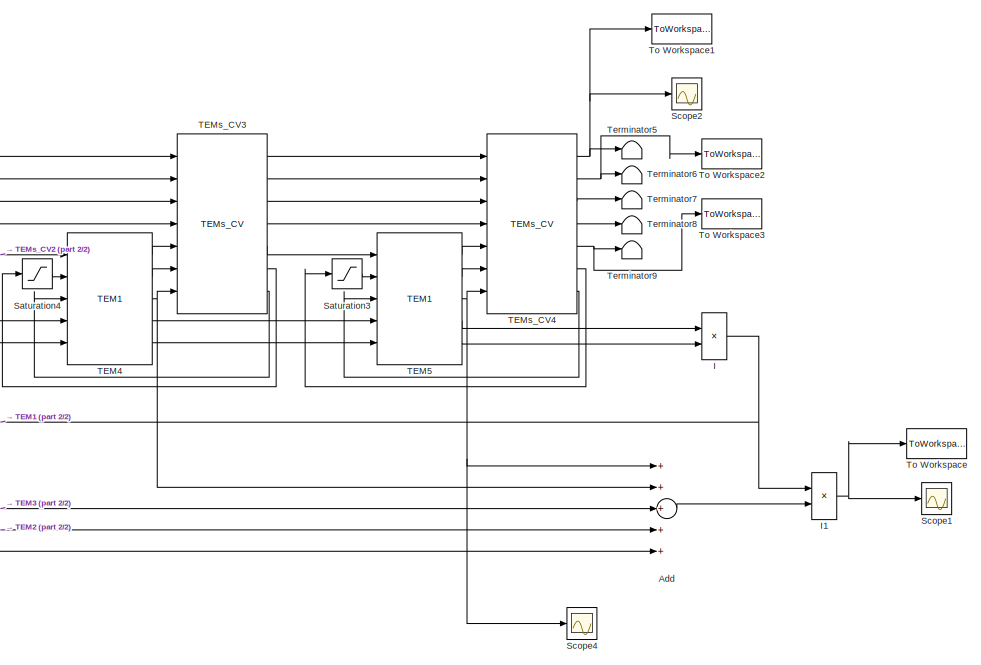
[diagram: root canvas - part 1/2, right side, full height]
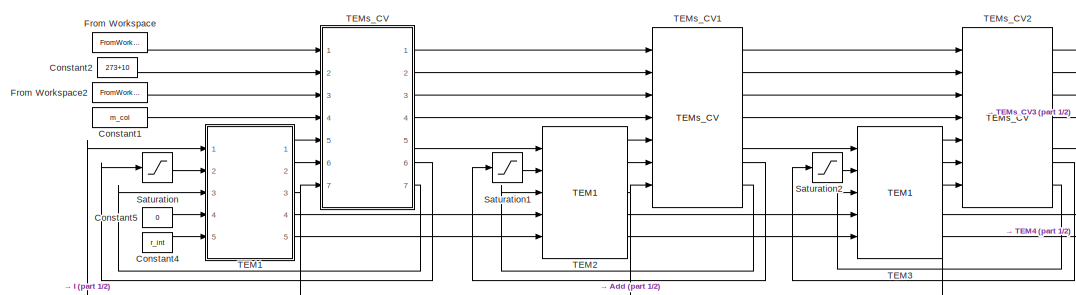
[diagram: root canvas - part 2/2, middle left region]
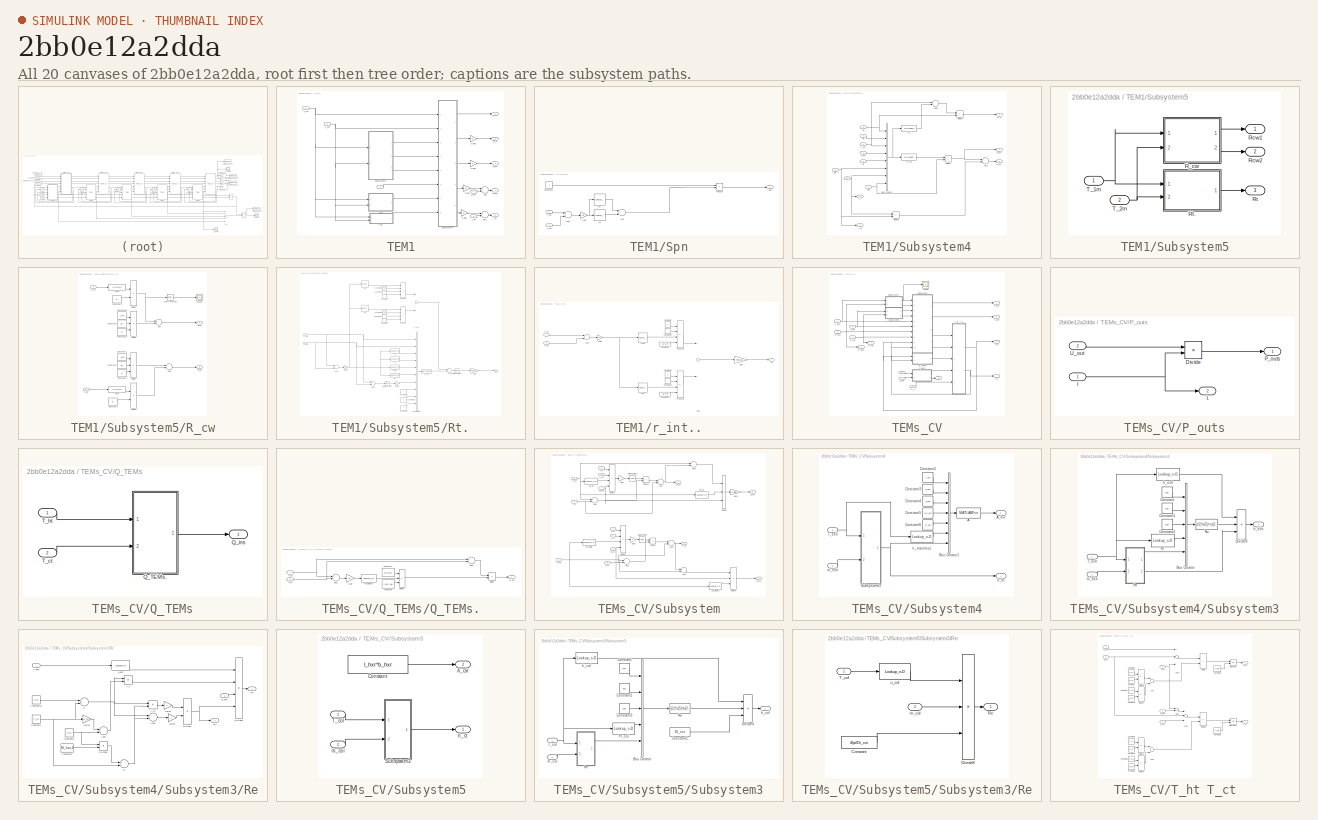
[diagram: thumbnail index - all 20 canvases of the model, root first then tree order]
MODEL slx_2bb0e12a2dda
KIND model
CONFIG AbsTol = auto
CONFIG FixedStep = 1
CONFIG MaxStep = auto
CONFIG MinStep = auto
CONFIG RelTol = 5e-3
CONFIG SampleTimeConstraint = Unconstrained
CONFIG Solver = ode3
CONFIG SolverMode = Auto
CONFIG SolverName = ode3
CONFIG StartTime = 0.0
CONFIG StopTime = 1372
BLOCK [Sum] Add
  InputSameDT = off
  Inputs = +++++
  OutDataTypeStr = Inherit: Inherit via internal rule
  Ports = [5, 1]
  SaturateOnIntegerOverflow = off
BLOCK [Constant] Constant1
  Value = m_col
BLOCK [Constant] Constant2
  Value = 273+10
BLOCK [Constant] Constant4
  Value = r_int
BLOCK [Constant] Constant5
  Value = 0
BLOCK [FromWorkspace] From Workspace
  SampleTime = 0
  VariableName = T_exh
  ZeroCross = on
BLOCK [FromWorkspace] From Workspace2
  SampleTime = 0
  VariableName = m_exh
  ZeroCross = on
BLOCK [Product] I
  InputSameDT = off
  Inputs = */
  OutDataTypeStr = Inherit: Inherit via internal rule
  Ports = [2, 1]
  RndMeth = Floor
  SaturateOnIntegerOverflow = off
BLOCK [Product] I1
  InputSameDT = off
  Inputs = **
  OutDataTypeStr = Inherit: Inherit via internal rule
  Ports = [2, 1]
  RndMeth = Floor
  SaturateOnIntegerOverflow = off
BLOCK [Saturate] Saturation
  InputPortMap = u0
  LowerLimit = 0
  Ports = [1, 1]
  UpperLimit = 523
BLOCK [Saturate] Saturation1
  InputPortMap = u0
  LowerLimit = 0
  Ports = [1, 1]
  UpperLimit = 523
BLOCK [Saturate] Saturation2
  InputPortMap = u0
  LowerLimit = 0
  Ports = [1, 1]
  UpperLimit = 523
BLOCK [Saturate] Saturation3
  InputPortMap = u0
  LowerLimit = 0
  Ports = [1, 1]
  UpperLimit = 523
BLOCK [Saturate] Saturation4
  InputPortMap = u0
  LowerLimit = 0
  Ports = [1, 1]
  UpperLimit = 523
BLOCK [Scope] Scope1
  Floating = off
  NumInputPorts = 1
  Ports = [1]
  SaveName = ScopeData1
  YMax = 224.25
  YMin = 221.25
BLOCK [Scope] Scope2
  Floating = off
  NumInputPorts = 1
  Ports = [1]
  YMax = 4.129
  YMin = 4.115
BLOCK [Scope] Scope4
  Floating = off
  NumInputPorts = 1
  Ports = [1]
  SaveName = ScopeData4
  YMax = 363
  YMin = 350
BLOCK [SubSystem] TEM1
  AncestorBlock = LU_TEG/TEM1
  Ports = [5, 5]
  RequestExecContextInheritance = off
BLOCK [Sum] TEM1/Add
  InputSameDT = off
  OutDataTypeStr = Inherit: Inherit via internal rule
  Ports = [2, 1]
  SaturateOnIntegerOverflow = off
BLOCK [Sum] TEM1/Add1
  InputSameDT = off
  OutDataTypeStr = Inherit: Inherit via internal rule
  Ports = [2, 1]
  SaturateOnIntegerOverflow = off
BLOCK [Gain] TEM1/Gain
  Gain = M
  OutDataTypeStr = Inherit: Inherit via internal rule
  ParamDataTypeStr = Inherit: Inherit via internal rule
  SaturateOnIntegerOverflow = off
BLOCK [Gain] TEM1/Gain1
  Gain = M
  OutDataTypeStr = Inherit: Inherit via internal rule
  ParamDataTypeStr = Inherit: Inherit via internal rule
  SaturateOnIntegerOverflow = off
BLOCK [Gain] TEM1/Gain2
  Gain = M
  OutDataTypeStr = Inherit: Inherit via internal rule
  ParamDataTypeStr = Inherit: Inherit via internal rule
  SaturateOnIntegerOverflow = off
BLOCK [Gain] TEM1/Gain3
  Gain = M
  OutDataTypeStr = Inherit: Inherit via internal rule
  ParamDataTypeStr = Inherit: Inherit via internal rule
  SaturateOnIntegerOverflow = off
BLOCK [Inport] TEM1/I
  IconDisplay = Port number
  OutDataTypeStr = double
  PortDimensions = 1
  SampleTime = [0,1]
  SamplingMode = Sample based
  SignalType = real
BLOCK [Outport] TEM1/I.
  IconDisplay = Port number
  OutDataTypeStr = double
  PortDimensions = 1
  SampleTime = [0,1]
  SamplingMode = Sample based
  SignalType = real
BLOCK [Outport] TEM1/Q_h
  IconDisplay = Port number
  OutDataTypeStr = double
  Port = 2
  PortDimensions = 1
  SampleTime = [0,1]
  SamplingMode = Sample based
  SignalType = real
BLOCK [SubSystem] TEM1/Spn
  Ports = [2, 1]
  RequestExecContextInheritance = off
BLOCK [Sum] TEM1/Spn/Add
  InputSameDT = off
  Inputs = +-
  OutDataTypeStr = Inherit: Inherit via internal rule
  Ports = [2, 1]
  SaturateOnIntegerOverflow = off
BLOCK [Sum] TEM1/Spn/Add2
  InputSameDT = off
  OutDataTypeStr = Inherit: Inherit via internal rule
  Ports = [2, 1]
  SaturateOnIntegerOverflow = off
BLOCK [Constant] TEM1/Spn/Constant2
  Value = n
BLOCK [Gain] TEM1/Spn/Gain
  Gain = 0.5
  OutDataTypeStr = Inherit: Inherit via internal rule
  ParamDataTypeStr = Inherit: Inherit via internal rule
  SaturateOnIntegerOverflow = off
BLOCK [Product] TEM1/Spn/Product
  InputSameDT = off
  OutDataTypeStr = Inherit: Inherit via internal rule
  Ports = [2, 1]
  RndMeth = Floor
  SaturateOnIntegerOverflow = off
BLOCK [Outport] TEM1/Spn/Spn
  IconDisplay = Port number
BLOCK [Inport] TEM1/Spn/T_1m
  IconDisplay = Port number
BLOCK [Inport] TEM1/Spn/T_2m
  IconDisplay = Port number
  Port = 2
BLOCK [Lookup_n-D] TEM1/Spn/sn
  BreakpointsForDimension1 = N(:,1)
  ExtrapMethod = Cubic spline
  InternalRulePriority = Speed
  InterpMethod = Cubic spline
  NumberOfTableDimensions = 1
  Ports = [1, 1]
  RndMeth = Simplest
  Table = N(:,2)
BLOCK [Lookup_n-D] TEM1/Spn/sp
  BreakpointsForDimension1 = P(:,1)
  ExtrapMethod = Cubic spline
  InternalRulePriority = Speed
  InterpMethod = Cubic spline
  NumberOfTableDimensions = 1
  Ports = [1, 1]
  RndMeth = Simplest
  Table = P(:,2)
BLOCK [SubSystem] TEM1/Subsystem4
  Ports = [8, 5]
  RequestExecContextInheritance = off
BLOCK [Sum] TEM1/Subsystem4/Add1
  InputSameDT = off
  Inputs = +-
  OutDataTypeStr = Inherit: Inherit via internal rule
  Ports = [2, 1]
  SaturateOnIntegerOverflow = off
BLOCK [Sum] TEM1/Subsystem4/Add2
  InputSameDT = off
  Inputs = +-
  OutDataTypeStr = Inherit: Inherit via internal rule
  Ports = [2, 1]
  SaturateOnIntegerOverflow = off
BLOCK [BusCreator] TEM1/Subsystem4/Bus Creator
  DisplayOption = bar
  Inputs = 8
  Ports = [8, 1]
BLOCK [Product] TEM1/Subsystem4/Divide1
  InputSameDT = off
  Inputs = **
  OutDataTypeStr = Inherit: Inherit via internal rule
  Ports = [2, 1]
  RndMeth = Floor
  SaturateOnIntegerOverflow = off
BLOCK [Product] TEM1/Subsystem4/Divide2
  InputSameDT = off
  Inputs = **
  OutDataTypeStr = Inherit: Inherit via internal rule
  Ports = [2, 1]
  RndMeth = Floor
  SaturateOnIntegerOverflow = off
BLOCK [Product] TEM1/Subsystem4/Divide3
  InputSameDT = off
  Inputs = */
  OutDataTypeStr = Inherit: Inherit via internal rule
  Ports = [2, 1]
  RndMeth = Floor
  SaturateOnIntegerOverflow = off
BLOCK [Inport] TEM1/Subsystem4/I
  IconDisplay = Port number
  Port = 6
BLOCK [Outport] TEM1/Subsystem4/I.
  IconDisplay = Port number
  OutDataTypeStr = double
  PortDimensions = 1
  SampleTime = [0,1]
  SamplingMode = Sample based
  SignalType = real
BLOCK [Outport] TEM1/Subsystem4/Q_h
  IconDisplay = Port number
  OutDataTypeStr = double
  Port = 2
  PortDimensions = 1
  SampleTime = [0,1]
  SamplingMode = Sample based
  SignalType = real
BLOCK [Inport] TEM1/Subsystem4/Rc
  IconDisplay = Port number
  Port = 4
BLOCK [Inport] TEM1/Subsystem4/Rh
  IconDisplay = Port number
  Port = 3
BLOCK [Inport] TEM1/Subsystem4/Rt
  IconDisplay = Port number
  Port = 5
BLOCK [Inport] TEM1/Subsystem4/Spn
  IconDisplay = Port number
  Port = 7
BLOCK [MATLABFcn] TEM1/Subsystem4/T_1
  MATLABFcn = T1(u(1),u(2),u(3),u(4),u(5),u(6),u(7),u(8))
  OutputSignalType = real
  Ports = [1, 1]
BLOCK [MATLABFcn] TEM1/Subsystem4/T_1_T2
  MATLABFcn = T1_T2(u(1),u(2),u(3),u(4),u(5),u(6),u(7),u(8))
  OutputSignalType = real
  Ports = [1, 1]
BLOCK [Inport] TEM1/Subsystem4/T_1m
  IconDisplay = Port number
BLOCK [Inport] TEM1/Subsystem4/T_2m
  IconDisplay = Port number
  Port = 2
BLOCK [Outport] TEM1/Subsystem4/U_ocv.
  IconDisplay = Port number
  Port = 4
BLOCK [Outport] TEM1/Subsystem4/U_out.
  IconDisplay = Port number
  Port = 3
BLOCK [Outport] TEM1/Subsystem4/r_int
  IconDisplay = Port number
  OutDataTypeStr = double
  Port = 5
  PortDimensions = 1
  SampleTime = [0,1]
  SamplingMode = Sample based
  SignalType = real
BLOCK [Inport] TEM1/Subsystem4/r_int..
  IconDisplay = Port number
  Port = 8
BLOCK [SubSystem] TEM1/Subsystem5
  Ports = [2, 3]
  RequestExecContextInheritance = off
BLOCK [SubSystem] TEM1/Subsystem5/R_cw
  Ports = [2, 2]
  RequestExecContextInheritance = off
BLOCK [Sum] TEM1/Subsystem5/R_cw/Add
  InputSameDT = off
  OutDataTypeStr = Inherit: Inherit via internal rule
  Ports = [2, 1]
  SaturateOnIntegerOverflow = off
BLOCK [Sum] TEM1/Subsystem5/R_cw/Add2
  InputSameDT = off
  OutDataTypeStr = Inherit: Inherit via internal rule
  Ports = [2, 1]
  SaturateOnIntegerOverflow = off
BLOCK [Constant] TEM1/Subsystem5/R_cw/Constant1
  Value = l_cw
BLOCK [Constant] TEM1/Subsystem5/R_cw/Constant2
  Value = a
BLOCK [Constant] TEM1/Subsystem5/R_cw/Constant20
  Value = l_cw
BLOCK [Constant] TEM1/Subsystem5/R_cw/Constant26
  Value = a
BLOCK [Constant] TEM1/Subsystem5/R_cw/Constant3
  Value = a
BLOCK [Constant] TEM1/Subsystem5/R_cw/Constant4
  Value = a
BLOCK [Constant] TEM1/Subsystem5/R_cw/Constant5
  Value = 35
BLOCK [Constant] TEM1/Subsystem5/R_cw/Constant6
  Value = 35
BLOCK [Product] TEM1/Subsystem5/R_cw/Divide
  InputSameDT = off
  Inputs = *//
  OutDataTypeStr = Inherit: Inherit via internal rule
  Ports = [3, 1]
  RndMeth = Floor
  SaturateOnIntegerOverflow = off
BLOCK [Product] TEM1/Subsystem5/R_cw/Divide1
  InputSameDT = off
  Inputs = *//
  OutDataTypeStr = Inherit: Inherit via internal rule
  Ports = [3, 1]
  RndMeth = Floor
  SaturateOnIntegerOverflow = off
BLOCK [Product] TEM1/Subsystem5/R_cw/Divide2
  InputSameDT = off
  Inputs = //
  OutDataTypeStr = Inherit: Inherit via internal rule
  Ports = [2, 1]
  RndMeth = Floor
  SaturateOnIntegerOverflow = off
BLOCK [Product] TEM1/Subsystem5/R_cw/Divide3
  InputSameDT = off
  Inputs = //
  OutDataTypeStr = Inherit: Inherit via internal rule
  Ports = [2, 1]
  RndMeth = Floor
  SaturateOnIntegerOverflow = off
BLOCK [Fcn] TEM1/Subsystem5/R_cw/Fcn1
  Expr = ct1*u+ct2
BLOCK [Fcn] TEM1/Subsystem5/R_cw/Fcn2
  Expr = ct1*u+ct2
BLOCK [Math] TEM1/Subsystem5/R_cw/Math Function
  Operator = reciprocal
  Ports = [1, 1]
BLOCK [Outport] TEM1/Subsystem5/R_cw/Rcw1
  IconDisplay = Port number
BLOCK [Outport] TEM1/Subsystem5/R_cw/Rcw2
  IconDisplay = Port number
  Port = 2
BLOCK [Scope] TEM1/Subsystem5/R_cw/Scope
  Floating = off
  NumInputPorts = 1
  Ports = [1]
  SaveName = ScopeData2
  YMax = 13
  YMin = 7
BLOCK [Inport] TEM1/Subsystem5/R_cw/T_1m
  IconDisplay = Port number
BLOCK [Inport] TEM1/Subsystem5/R_cw/T_2m
  IconDisplay = Port number
  Port = 2
BLOCK [Outport] TEM1/Subsystem5/Rcw1
  IconDisplay = Port number
BLOCK [Outport] TEM1/Subsystem5/Rcw2
  IconDisplay = Port number
  Port = 2
BLOCK [Outport] TEM1/Subsystem5/Rt
  IconDisplay = Port number
  Port = 3
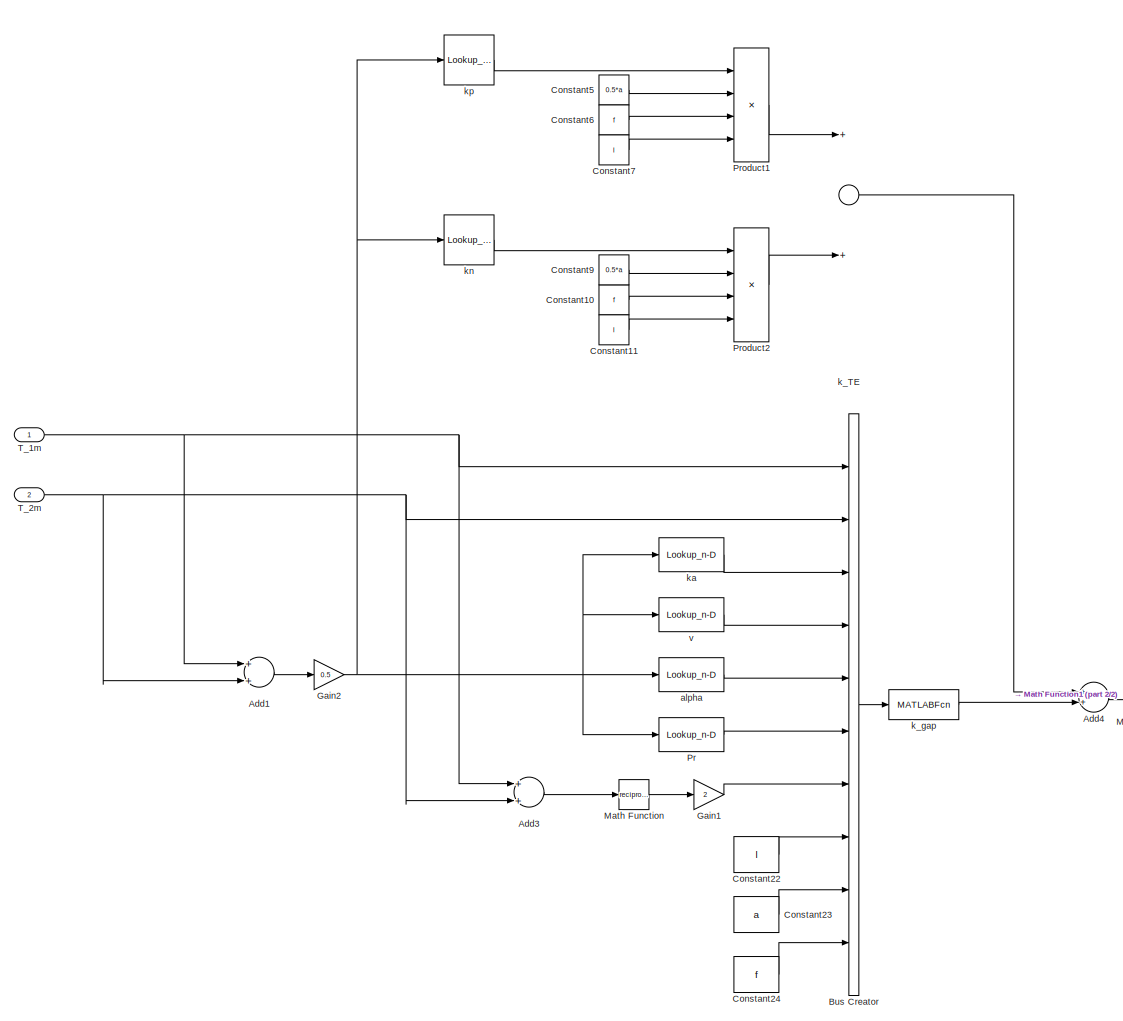
[diagram: TEM1/Subsystem5/Rt. - part 1/2, most of the canvas]
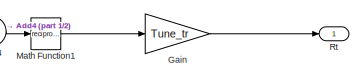
[diagram: TEM1/Subsystem5/Rt. - part 2/2, bottom right region]
BLOCK [SubSystem] TEM1/Subsystem5/Rt.
  Ports = [2, 1]
  RequestExecContextInheritance = off
BLOCK [Sum] TEM1/Subsystem5/Rt./Add1
  InputSameDT = off
  OutDataTypeStr = Inherit: Inherit via internal rule
  Ports = [2, 1]
  SaturateOnIntegerOverflow = off
BLOCK [Sum] TEM1/Subsystem5/Rt./Add3
  InputSameDT = off
  OutDataTypeStr = Inherit: Inherit via internal rule
  Ports = [2, 1]
  SaturateOnIntegerOverflow = off
BLOCK [Sum] TEM1/Subsystem5/Rt./Add4
  InputSameDT = off
  OutDataTypeStr = Inherit: Inherit via internal rule
  Ports = [2, 1]
  SaturateOnIntegerOverflow = off
BLOCK [BusCreator] TEM1/Subsystem5/Rt./Bus Creator
  DisplayOption = bar
  Inputs = 10
  Ports = [10, 1]
BLOCK [Constant] TEM1/Subsystem5/Rt./Constant10
  Value = f
BLOCK [Constant] TEM1/Subsystem5/Rt./Constant11
  Value = l
BLOCK [Constant] TEM1/Subsystem5/Rt./Constant22
  Value = l
BLOCK [Constant] TEM1/Subsystem5/Rt./Constant23
  Value = a
BLOCK [Constant] TEM1/Subsystem5/Rt./Constant24
  Value = f
BLOCK [Constant] TEM1/Subsystem5/Rt./Constant5
  Value = 0.5*a
BLOCK [Constant] TEM1/Subsystem5/Rt./Constant6
  Value = f
BLOCK [Constant] TEM1/Subsystem5/Rt./Constant7
  Value = l
BLOCK [Constant] TEM1/Subsystem5/Rt./Constant9
  Value = 0.5*a
BLOCK [Gain] TEM1/Subsystem5/Rt./Gain
  Gain = Tune_tr
  OutDataTypeStr = Inherit: Inherit via internal rule
  ParamDataTypeStr = Inherit: Inherit via internal rule
  SaturateOnIntegerOverflow = off
BLOCK [Gain] TEM1/Subsystem5/Rt./Gain1
  Gain = 2
  OutDataTypeStr = Inherit: Inherit via internal rule
  ParamDataTypeStr = Inherit: Inherit via internal rule
  SaturateOnIntegerOverflow = off
BLOCK [Gain] TEM1/Subsystem5/Rt./Gain2
  Gain = 0.5
  OutDataTypeStr = Inherit: Inherit via internal rule
  ParamDataTypeStr = Inherit: Inherit via internal rule
  SaturateOnIntegerOverflow = off
BLOCK [Math] TEM1/Subsystem5/Rt./Math Function
  Operator = reciprocal
  Ports = [1, 1]
BLOCK [Math] TEM1/Subsystem5/Rt./Math Function1
  Operator = reciprocal
  Ports = [1, 1]
BLOCK [Lookup_n-D] TEM1/Subsystem5/Rt./Pr
  BreakpointsForDimension1 = [293\n313\n333\n353\n373\n393\n413\n433\n453\n473\n493\n513\n533\n553\n573\n593\n613\n633\n653\n673\n693\n713\n733\n753\n773\n793\n813\n833\n853\n873\n900\n920\n940\n960\n980\n1000\n1020\n1040\n1060\n1080\n1100\n1120\n1140\n1160\n1180\n1200\n1220\n1240\n1260\n1280\n1300\n1320\n1340\n1360\n1380\n1400\n1420\n1440\n1460\n1480]  <repeated x8 — deduplicated; at blocks: Pr, alpha, ka, v, Cp_air, Cp_air., k_exh>
  ExtrapMethod = Cubic spline
  InterpMethod = Cubic spline
  NumberOfTableDimensions = 1
  Ports = [1, 1]
  RndMeth = Simplest
  Table = [0.70868\n0.70388\n0.69972\n0.6964\n0.6924\n0.68912\n0.68696\n0.68536\n0.68376\n0.68216\n0.68056\n0.68\n0.68\n0.68\n0.68\n0.68\n0.68052\n0.68132\n0.68212\n0.68292\n0.68372\n0.68478\n0.68598\n0.68718\n0.68838\n0.68958\n0.69078\n0.69198\n0.69318\n0.69438\n0.696\n0.6972\n0.6984\n0.6996\n0.7008\n0.702\n0.7028\n0.7036\n0.7046\n0.7058\n0.707\n0.7078\n0.7086\n0.7094\n0.7102\n0.711\n0.7118\n0.7126\n0.7134\n0.7142\n0.715\n0.7158\n0.7166\n0.7174\n0.7182\n0.719\n...<+29ch>
BLOCK [Product] TEM1/Subsystem5/Rt./Product1
  InputSameDT = off
  Inputs = ***/
  OutDataTypeStr = Inherit: Inherit via internal rule
  Ports = [4, 1]
  RndMeth = Floor
  SaturateOnIntegerOverflow = off
BLOCK [Product] TEM1/Subsystem5/Rt./Product2
  InputSameDT = off
  Inputs = ***/
  OutDataTypeStr = Inherit: Inherit via internal rule
  Ports = [4, 1]
  RndMeth = Floor
  SaturateOnIntegerOverflow = off
BLOCK [Outport] TEM1/Subsystem5/Rt./Rt
  IconDisplay = Port number
BLOCK [Inport] TEM1/Subsystem5/Rt./T_1m
  IconDisplay = Port number
BLOCK [Inport] TEM1/Subsystem5/Rt./T_2m
  IconDisplay = Port number
  Port = 2
BLOCK [Lookup_n-D] TEM1/Subsystem5/Rt./alpha
  ExtrapMethod = Cubic spline
  InterpMethod = Cubic spline
  NumberOfTableDimensions = 1
  Ports = [1, 1]
  RndMeth = Simplest
  Table = [2.14551E-05\n2.42197E-05\n2.71451E-05\n3.01755E-05\n3.32992E-05\n3.65423E-05\n3.98418E-05\n4.32631E-05\n4.67259E-05\n5.03421E-05\n5.40342E-05\n5.77836E-05\n6.16602E-05\n6.5511E-05\n6.94474E-05\n7.35134E-05\n7.75786E-05\n8.18073E-05\n8.60163E-05\n9.03078E-05\n9.47366E-05\n9.91488E-05\n0.000103728\n0.000108175\n0.000112784\n0.000117529\n0.000122257\n0.000127153\n0.000132003\n0.000137003\n0.000142748\n0.000147552\n0.000152555\n0.00...<+317ch>
BLOCK [Sum] TEM1/Subsystem5/Rt./k_TE
  InputSameDT = off
  OutDataTypeStr = Inherit: Inherit via internal rule
  Ports = [2, 1]
  SaturateOnIntegerOverflow = off
BLOCK [MATLABFcn] TEM1/Subsystem5/Rt./k_gap
  MATLABFcn = k_gap(u(1),u(2),u(3),u(4),u(5),u(6),u(7),u(8),u(9),u(10))
  Ports = [1, 1]
BLOCK [Lookup_n-D] TEM1/Subsystem5/Rt./ka
  ExtrapMethod = Cubic spline
  InterpMethod = Cubic spline
  NumberOfTableDimensions = 1
  Ports = [1, 1]
  RndMeth = Simplest
  Table = [0.02568\n0.02716\n0.02861\n0.03003\n0.03142\n0.03279\n0.03412\n0.03544\n0.03673\n0.03801\n0.03926\n0.0405\n0.04172\n0.04293\n0.04413\n0.04531\n0.04648\n0.04764\n0.04879\n0.04993\n0.05106\n0.05218\n0.0533\n0.05441\n0.05551\n0.0566\n0.05769\n0.05877\n0.05985\n0.06092\n0.06276\n0.063736\n0.064712\n0.065668\n0.066604\n0.06754\n0.068464\n0.069388\n0.070298\n0.071194\n0.07209\n0.072962\n0.073834\n0.074696\n0.075548\n0.0764\n0.077236\n0.078072\n0.078...<+97ch>
BLOCK [Lookup_n-D] TEM1/Subsystem5/Rt./kn
  BreakpointsForDimension1 = N(:,1)
  ExtrapMethod = Cubic spline
  InternalRulePriority = Speed
  InterpMethod = Cubic spline
  NumberOfTableDimensions = 1
  Ports = [1, 1]
  RndMeth = Simplest
  Table = N(:,4)
BLOCK [Lookup_n-D] TEM1/Subsystem5/Rt./kp
  BreakpointsForDimension1 = P(:,1)
  ExtrapMethod = Cubic spline
  InternalRulePriority = Speed
  InterpMethod = Cubic spline
  NumberOfTableDimensions = 1
  Ports = [1, 1]
  RndMeth = Simplest
  Table = P(:,4)
BLOCK [Lookup_n-D] TEM1/Subsystem5/Rt./v
  ExtrapMethod = Cubic spline
  InterpMethod = Cubic spline
  NumberOfTableDimensions = 1
  Ports = [1, 1]
  RndMeth = Simplest
  Table = [1.50500000000000e-05\n1.69228000000000e-05\n1.88668000000000e-05\n2.08732000000000e-05\n2.29612000000000e-05\n2.51428000000000e-05\n2.74102000000000e-05\n2.97182000000000e-05\n3.20484000000000e-05\n3.45044000000000e-05\n3.69604000000000e-05\n3.95282000000000e-05\n4.21562000000000e-05\n4.48034000000000e-05\n4.75594000000000e-05\n5.03154000000000e-05\n5.31650000000000e-05\n5.60650000000000e-05\n5.89824000000000e-05\n...<+861ch>
BLOCK [Inport] TEM1/Subsystem5/T_1m
  IconDisplay = Port number
BLOCK [Inport] TEM1/Subsystem5/T_2m
  IconDisplay = Port number
  Port = 2
BLOCK [Inport] TEM1/T_1m
  IconDisplay = Port number
  OutDataTypeStr = double
  Port = 2
  PortDimensions = 1
  SampleTime = [0,1]
  SamplingMode = Sample based
  SignalType = real
BLOCK [Inport] TEM1/T_2m
  IconDisplay = Port number
  OutDataTypeStr = double
  Port = 3
  PortDimensions = 1
  SampleTime = [0,1]
  SamplingMode = Sample based
  SignalType = real
BLOCK [Inport] TEM1/U_ocv
  IconDisplay = Port number
  OutDataTypeStr = double
  Port = 4
  PortDimensions = 1
  SampleTime = [0,1]
  SamplingMode = Sample based
  SignalType = real
BLOCK [Outport] TEM1/U_ocv*
  IconDisplay = Port number
  Port = 4
BLOCK [Outport] TEM1/U_out
  IconDisplay = Port number
  Port = 3
BLOCK [Inport] TEM1/r_int
  IconDisplay = Port number
  OutDataTypeStr = double
  Port = 5
  PortDimensions = 1
  SampleTime = [0,1]
  SamplingMode = Sample based
  SignalType = real
BLOCK [Outport] TEM1/r_int* 
  IconDisplay = Port number
  Port = 5
BLOCK [SubSystem] TEM1/r_int..
  Ports = [2, 1]
  RequestExecContextInheritance = off
BLOCK [Sum] TEM1/r_int../Add2
  InputSameDT = off
  OutDataTypeStr = Inherit: Inherit via internal rule
  Ports = [2, 1]
  SaturateOnIntegerOverflow = off
BLOCK [Sum] TEM1/r_int../Add4
  InputSameDT = off
  OutDataTypeStr = Inherit: Inherit via internal rule
  Ports = [2, 1]
  SaturateOnIntegerOverflow = off
BLOCK [Constant] TEM1/r_int../Constant12
  Value = 0.5*a*f/n
BLOCK [Constant] TEM1/r_int../Constant13
  Value = 0.5*a*f/n
BLOCK [Constant] TEM1/r_int../Constant14
  Value = l
BLOCK [Constant] TEM1/r_int../Constant16
  Value = l
BLOCK [Constant] TEM1/r_int../Constant18
  Value = n
BLOCK [Constant] TEM1/r_int../Constant4
  Value = n
BLOCK [Gain] TEM1/r_int../Gain
  Gain = Tune_er
  OutDataTypeStr = Inherit: Inherit via internal rule
  ParamDataTypeStr = Inherit: Inherit via internal rule
  SaturateOnIntegerOverflow = off
BLOCK [Gain] TEM1/r_int../Gain1
  Gain = 0.5
  OutDataTypeStr = Inherit: Inherit via internal rule
  ParamDataTypeStr = Inherit: Inherit via internal rule
  SaturateOnIntegerOverflow = off
BLOCK [Product] TEM1/r_int../Product3
  InputSameDT = off
  Inputs = ***/
  OutDataTypeStr = Inherit: Inherit via internal rule
  Ports = [4, 1]
  RndMeth = Floor
  SaturateOnIntegerOverflow = off
BLOCK [Product] TEM1/r_int../Product4
  InputSameDT = off
  Inputs = ***/
  OutDataTypeStr = Inherit: Inherit via internal rule
  Ports = [4, 1]
  RndMeth = Floor
  SaturateOnIntegerOverflow = off
BLOCK [Inport] TEM1/r_int../T_1m
  IconDisplay = Port number
BLOCK [Inport] TEM1/r_int../T_2m
  IconDisplay = Port number
  Port = 2
BLOCK [Outport] TEM1/r_int../r_int.
  IconDisplay = Port number
BLOCK [Lookup_n-D] TEM1/r_int../rhon
  BreakpointsForDimension1 = N(:,1)
  ExtrapMethod = Cubic spline
  InternalRulePriority = Speed
  InterpMethod = Cubic spline
  NumberOfTableDimensions = 1
  Ports = [1, 1]
  RndMeth = Simplest
  Table = N(:,3)
BLOCK [Lookup_n-D] TEM1/r_int../rhop
  BreakpointsForDimension1 = P(:,1)
  ExtrapMethod = Cubic spline
  InternalRulePriority = Speed
  InterpMethod = Cubic spline
  NumberOfTableDimensions = 1
  Ports = [1, 1]
  RndMeth = Simplest
  Table = P(:,3)
BLOCK [Reference] TEM2  REF=LU_TEG/TEM1
  Parameter10 = M
  Ports = [5, 5]
  SourceBlock = LU_TEG/TEM1
  Tune_er = Tune_er
  Tune_tr = Tune_tr
  a = a
  ct1 = ct1
  ct2 = ct2
  f = f
  l = l
  l_cw = l_cw
  n = n
BLOCK [Reference] TEM3  REF=LU_TEG/TEM1
  Parameter10 = M
  Ports = [5, 5]
  SourceBlock = LU_TEG/TEM1
  Tune_er = Tune_er
  Tune_tr = Tune_tr
  a = a
  ct1 = ct1
  ct2 = ct2
  f = f
  l = l
  l_cw = l_cw
  n = n
BLOCK [Reference] TEM4  REF=LU_TEG/TEM1
  Parameter10 = M
  Ports = [5, 5]
  SourceBlock = LU_TEG/TEM1
  Tune_er = Tune_er
  Tune_tr = Tune_tr
  a = a
  ct1 = ct1
  ct2 = ct2
  f = f
  l = l
  l_cw = l_cw
  n = n
BLOCK [Reference] TEM5  REF=LU_TEG/TEM1
  Parameter10 = M
  Ports = [5, 5]
  SourceBlock = LU_TEG/TEM1
  Tune_er = Tune_er
  Tune_tr = Tune_tr
  a = a
  ct1 = ct1
  ct2 = ct2
  f = f
  l = l
  l_cw = l_cw
  n = n
BLOCK [SubSystem] TEMs_CV
  AncestorBlock = LU_TEG/TEMs_CV
  Ports = [7, 7]
  RequestExecContextInheritance = off
BLOCK [Inport] TEMs_CV/I
  IconDisplay = Port number
  Port = 5
BLOCK [Outport] TEMs_CV/I.
  IconDisplay = Port number
  Port = 5
BLOCK [SubSystem] TEMs_CV/P_outs
  Ports = [2, 2]
  RequestExecContextInheritance = off
BLOCK [Product] TEMs_CV/P_outs/Divide
  InputSameDT = off
  Inputs = **
  OutDataTypeStr = Inherit: Inherit via internal rule
  Ports = [2, 1]
  RndMeth = Floor
  SaturateOnIntegerOverflow = off
BLOCK [Inport] TEMs_CV/P_outs/I
  IconDisplay = Port number
BLOCK [Outport] TEMs_CV/P_outs/I.
  IconDisplay = Port number
  Port = 2
BLOCK [Outport] TEMs_CV/P_outs/P_outs
  IconDisplay = Port number
BLOCK [Inport] TEMs_CV/P_outs/U_out
  IconDisplay = Port number
  Port = 2
BLOCK [SubSystem] TEMs_CV/Q_TEMs
  Ports = [2, 1]
  RequestExecContextInheritance = off
BLOCK [SubSystem] TEMs_CV/Q_TEMs/Q_TEMs.
  Ports = [2, 1]
  RequestExecContextInheritance = off
BLOCK [Sum] TEMs_CV/Q_TEMs/Q_TEMs./Add1
  InputSameDT = off
  OutDataTypeStr = Inherit: Inherit via internal rule
  Ports = [2, 1]
  SaturateOnIntegerOverflow = off
BLOCK [Sum] TEMs_CV/Q_TEMs/Q_TEMs./Add2
  InputSameDT = off
  Inputs = +-
  OutDataTypeStr = Inherit: Inherit via internal rule
  Ports = [2, 1]
  SaturateOnIntegerOverflow = off
BLOCK [Constant] TEMs_CV/Q_TEMs/Q_TEMs./Constant
  Value = l+2*l_cw
BLOCK [Constant] TEMs_CV/Q_TEMs/Q_TEMs./Constant1
  Value = B-M*a
BLOCK [Product] TEMs_CV/Q_TEMs/Q_TEMs./Divide
  InputSameDT = off
  Inputs = **
  OutDataTypeStr = Inherit: Inherit via internal rule
  Ports = [2, 1]
  RndMeth = Floor
  SaturateOnIntegerOverflow = off
BLOCK [Product] TEMs_CV/Q_TEMs/Q_TEMs./Divide1
  InputSameDT = off
  Inputs = **/
  OutDataTypeStr = Inherit: Inherit via internal rule
  Ports = [3, 1]
  RndMeth = Floor
  SaturateOnIntegerOverflow = off
BLOCK [Gain] TEMs_CV/Q_TEMs/Q_TEMs./Gain
  Gain = 0.5
  OutDataTypeStr = Inherit: Inherit via internal rule
  ParamDataTypeStr = Inherit: Inherit via internal rule
  SaturateOnIntegerOverflow = off
BLOCK [Lookup_n-D] TEMs_CV/Q_TEMs/Q_TEMs./Insulation
  BreakpointsForDimension1 = [273\n373\n473\n573\n673\n773\n873]
  ExtrapMethod = Cubic spline
  InterpMethod = Cubic spline
  NumberOfTableDimensions = 1
  Ports = [1, 1]
  RndMeth = Simplest
  Table = [0.02\n0.023\n0.028\n0.035\n0.046\n0.064\n0.089]
BLOCK [Outport] TEMs_CV/Q_TEMs/Q_TEMs./Q_ins
  IconDisplay = Port number
BLOCK [Inport] TEMs_CV/Q_TEMs/Q_TEMs./T_ct
  IconDisplay = Port number
  Port = 2
BLOCK [Inport] TEMs_CV/Q_TEMs/Q_TEMs./T_ht
  IconDisplay = Port number
BLOCK [Outport] TEMs_CV/Q_TEMs/Q_ins
  IconDisplay = Port number
BLOCK [Inport] TEMs_CV/Q_TEMs/T_ct
  IconDisplay = Port number
  Port = 2
BLOCK [Inport] TEMs_CV/Q_TEMs/T_ht
  IconDisplay = Port number
BLOCK [Inport] TEMs_CV/Q_h
  IconDisplay = Port number
  Port = 6
BLOCK [Scope] TEMs_CV/Scope
  Floating = off
  NumInputPorts = 1
  Ports = [1]
  SaveName = ScopeData5
  TimeRange = 1372
  YMax = 119
  YMin = 114.5
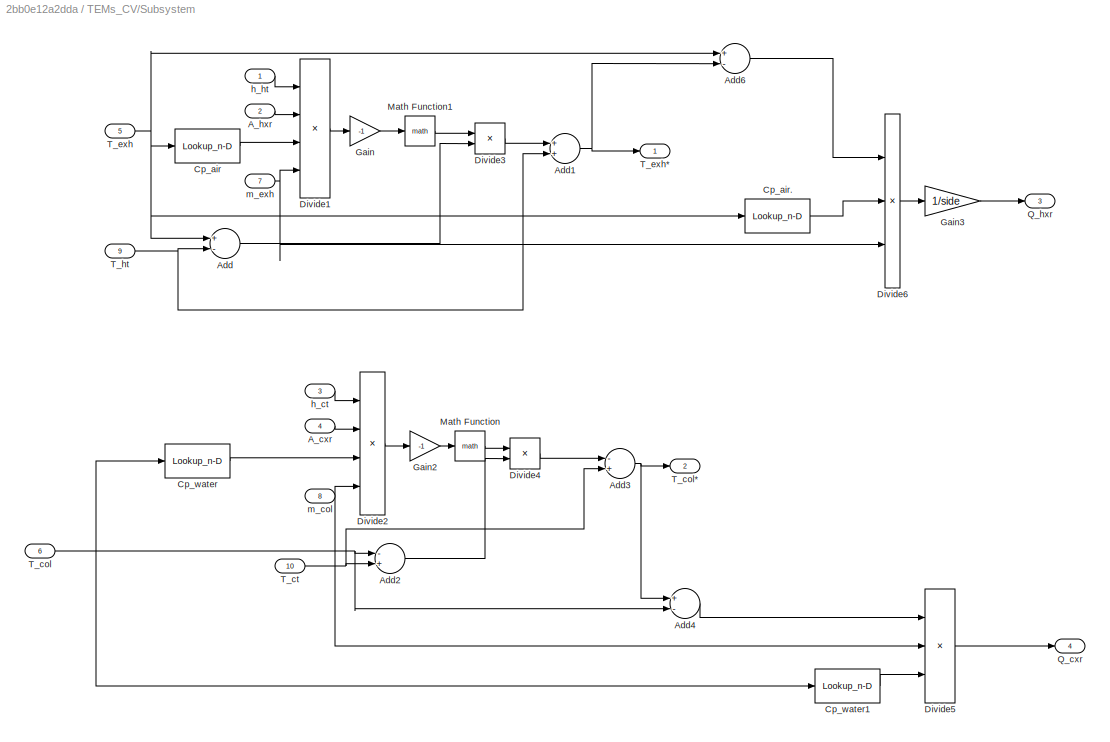
BLOCK [SubSystem] TEMs_CV/Subsystem
  Ports = [10, 4]
  RequestExecContextInheritance = off
BLOCK [Inport] TEMs_CV/Subsystem/A_cxr
  IconDisplay = Port number
  Port = 4
BLOCK [Inport] TEMs_CV/Subsystem/A_hxr
  IconDisplay = Port number
  Port = 2
BLOCK [Sum] TEMs_CV/Subsystem/Add
  InputSameDT = off
  Inputs = +-
  OutDataTypeStr = Inherit: Inherit via internal rule
  Ports = [2, 1]
  SaturateOnIntegerOverflow = off
BLOCK [Sum] TEMs_CV/Subsystem/Add1
  InputSameDT = off
  OutDataTypeStr = Inherit: Inherit via internal rule
  Ports = [2, 1]
  SaturateOnIntegerOverflow = off
BLOCK [Sum] TEMs_CV/Subsystem/Add2
  InputSameDT = off
  Inputs = -+
  OutDataTypeStr = Inherit: Inherit via internal rule
  Ports = [2, 1]
  SaturateOnIntegerOverflow = off
BLOCK [Sum] TEMs_CV/Subsystem/Add3
  InputSameDT = off
  Inputs = -+
  OutDataTypeStr = Inherit: Inherit via internal rule
  Ports = [2, 1]
  SaturateOnIntegerOverflow = off
BLOCK [Sum] TEMs_CV/Subsystem/Add4
  InputSameDT = off
  Inputs = +-
  OutDataTypeStr = Inherit: Inherit via internal rule
  Ports = [2, 1]
  SaturateOnIntegerOverflow = off
BLOCK [Sum] TEMs_CV/Subsystem/Add6
  InputSameDT = off
  Inputs = +-
  OutDataTypeStr = Inherit: Inherit via internal rule
  Ports = [2, 1]
  SaturateOnIntegerOverflow = off
BLOCK [Lookup_n-D] TEMs_CV/Subsystem/Cp_air
  ExtrapMethod = Cubic spline
  InterpMethod = Cubic spline
  NumberOfTableDimensions = 1
  Ports = [1, 1]
  RndMeth = Simplest
  Table = [1007\n1008\n1008\n1009\n1011\n1013\n1016\n1019\n1023\n1026\n1029\n1033\n1036\n1041\n1046\n1050\n1055\n1059\n1064\n1069\n1073\n1078\n1082\n1088\n1093\n1097\n1102\n1106\n1111\n1115\n1121\n1125\n1129\n1133\n1137\n1141\n1145\n1148\n1152\n1155\n1159\n1162\n1165\n1168\n1171\n1174\n1177\n1180\n1183\n1185\n1188\n1191\n1193\n1196\n1198\n1200\n1202\n1205\n1207\n1209\n]
BLOCK [Lookup_n-D] TEMs_CV/Subsystem/Cp_air.
  ExtrapMethod = Cubic spline
  InterpMethod = Cubic spline
  NumberOfTableDimensions = 1
  Ports = [1, 1]
  RndMeth = Simplest
  Table = [1007\n1008\n1008\n1009\n1011\n1013\n1016\n1019\n1023\n1026\n1029\n1033\n1036\n1041\n1046\n1050\n1055\n1059\n1064\n1069\n1073\n1078\n1082\n1088\n1093\n1097\n1102\n1106\n1111\n1115\n1121\n1125\n1129\n1133\n1137\n1141\n1145\n1148\n1152\n1155\n1159\n1162\n1165\n1168\n1171\n1174\n1177\n1180\n1183\n1185\n1188\n1191\n1193\n1196\n1198\n1200\n1202\n1205\n1207\n1209\n]
BLOCK [Lookup_n-D] TEMs_CV/Subsystem/Cp_water
  BreakpointsForDimension1 = [273\n274\n275\n276\n277\n278\n279\n280\n281\n282\n283\n284\n285\n286\n287\n288\n289\n290\n291\n292\n293\n294\n295\n296\n297\n298\n299\n300\n301\n302\n303\n304\n305\n306\n307\n308\n309\n310\n311\n312\n313\n314\n315\n316\n317\n318\n319\n320\n321\n322\n323\n324\n325\n326\n327\n328\n329\n330\n331\n332\n333\n334\n335\n336\n337\n338\n339\n340\n341\n342\n343\n344\n345\n346\n347\n348\n349\n350\n351\n352\n353\n354\n355\n356\n357\n358\n359\n360\n361\n362\n363\n364\n365\n366\n367\n368\n369\n370\n371\n372...<+5ch>  <repeated x3 — deduplicated; at blocks: Cp_water, Cp_water1, u_col>
  ExtrapMethod = Cubic spline
  InterpMethod = Cubic spline
  NumberOfTableDimensions = 1
  Ports = [1, 1]
  RndMeth = Simplest
  Table = [4217\n4213\n4210\n4207\n4205\n4202\n4200\n4198\n4196\n4194\n4192\n4191\n4189\n4188\n4187\n4186\n4185\n4184\n4183\n4182\n4182\n4181\n4181\n4180\n4180\n4180\n4179\n4179\n4179\n4179\n4178\n4178\n4178\n4178\n4178\n4178\n4178\n4178\n4178\n4179\n4179\n4179\n4179\n4179\n4179\n4180\n4180\n4180\n4180\n4181\n4181\n4181\n4182\n4182\n4182\n4183\n4183\n4183\n4184\n4184\n4185\n4185\n4186\n4186\n4187\n4187\n4188\n4188\n4189\n4189\n4190\n4190\n4191\n4192\n4192\n4193\n4194\n4194\n4195\n4196...<+106ch>
BLOCK [Lookup_n-D] TEMs_CV/Subsystem/Cp_water1
  ExtrapMethod = Cubic spline
  InterpMethod = Cubic spline
  NumberOfTableDimensions = 1
  Ports = [1, 1]
  RndMeth = Simplest
  Table = [4217\n4213\n4210\n4207\n4205\n4202\n4200\n4198\n4196\n4194\n4192\n4191\n4189\n4188\n4187\n4186\n4185\n4184\n4183\n4182\n4182\n4181\n4181\n4180\n4180\n4180\n4179\n4179\n4179\n4179\n4178\n4178\n4178\n4178\n4178\n4178\n4178\n4178\n4178\n4179\n4179\n4179\n4179\n4179\n4179\n4180\n4180\n4180\n4180\n4181\n4181\n4181\n4182\n4182\n4182\n4183\n4183\n4183\n4184\n4184\n4185\n4185\n4186\n4186\n4187\n4187\n4188\n4188\n4189\n4189\n4190\n4190\n4191\n4192\n4192\n4193\n4194\n4194\n4195\n4196...<+106ch>
BLOCK [Product] TEMs_CV/Subsystem/Divide1
  InputSameDT = off
  Inputs = **//
  OutDataTypeStr = Inherit: Inherit via internal rule
  Ports = [4, 1]
  RndMeth = Floor
  SaturateOnIntegerOverflow = off
BLOCK [Product] TEMs_CV/Subsystem/Divide2
  InputSameDT = off
  Inputs = **//
  OutDataTypeStr = Inherit: Inherit via internal rule
  Ports = [4, 1]
  RndMeth = Floor
  SaturateOnIntegerOverflow = off
BLOCK [Product] TEMs_CV/Subsystem/Divide3
  InputSameDT = off
  Inputs = **
  OutDataTypeStr = Inherit: Inherit via internal rule
  Ports = [2, 1]
  RndMeth = Floor
  SaturateOnIntegerOverflow = off
BLOCK [Product] TEMs_CV/Subsystem/Divide4
  InputSameDT = off
  Inputs = **
  OutDataTypeStr = Inherit: Inherit via internal rule
  Ports = [2, 1]
  RndMeth = Floor
  SaturateOnIntegerOverflow = off
BLOCK [Product] TEMs_CV/Subsystem/Divide5
  InputSameDT = off
  Inputs = ***
  OutDataTypeStr = Inherit: Inherit via internal rule
  Ports = [3, 1]
  RndMeth = Floor
  SaturateOnIntegerOverflow = off
BLOCK [Product] TEMs_CV/Subsystem/Divide6
  InputSameDT = off
  Inputs = ***
  OutDataTypeStr = Inherit: Inherit via internal rule
  Ports = [3, 1]
  RndMeth = Floor
  SaturateOnIntegerOverflow = off
BLOCK [Gain] TEMs_CV/Subsystem/Gain
  Gain = -1
  OutDataTypeStr = Inherit: Inherit via internal rule
  ParamDataTypeStr = Inherit: Inherit via internal rule
  SaturateOnIntegerOverflow = off
BLOCK [Gain] TEMs_CV/Subsystem/Gain2
  Gain = -1
  OutDataTypeStr = Inherit: Inherit via internal rule
  ParamDataTypeStr = Inherit: Inherit via internal rule
  SaturateOnIntegerOverflow = off
BLOCK [Gain] TEMs_CV/Subsystem/Gain3
  Gain = 1/side
  OutDataTypeStr = Inherit: Inherit via internal rule
  ParamDataTypeStr = Inherit: Inherit via internal rule
  SaturateOnIntegerOverflow = off
BLOCK [Math] TEMs_CV/Subsystem/Math Function
  Ports = [1, 1]
BLOCK [Math] TEMs_CV/Subsystem/Math Function1
  Ports = [1, 1]
BLOCK [Outport] TEMs_CV/Subsystem/Q_cxr
  IconDisplay = Port number
  Port = 4
BLOCK [Outport] TEMs_CV/Subsystem/Q_hxr
  IconDisplay = Port number
  Port = 3
BLOCK [Inport] TEMs_CV/Subsystem/T_col
  IconDisplay = Port number
  Port = 6
BLOCK [Outport] TEMs_CV/Subsystem/T_col*
  IconDisplay = Port number
  Port = 2
BLOCK [Inport] TEMs_CV/Subsystem/T_ct
  IconDisplay = Port number
  Port = 10
BLOCK [Inport] TEMs_CV/Subsystem/T_exh
  IconDisplay = Port number
  Port = 5
BLOCK [Outport] TEMs_CV/Subsystem/T_exh*
  IconDisplay = Port number
BLOCK [Inport] TEMs_CV/Subsystem/T_ht
  IconDisplay = Port number
  Port = 9
BLOCK [Inport] TEMs_CV/Subsystem/h_ct
  IconDisplay = Port number
  Port = 3
BLOCK [Inport] TEMs_CV/Subsystem/h_ht
  IconDisplay = Port number
BLOCK [Inport] TEMs_CV/Subsystem/m_col
  IconDisplay = Port number
  Port = 8
BLOCK [Inport] TEMs_CV/Subsystem/m_exh
  IconDisplay = Port number
  Port = 7
BLOCK [SubSystem] TEMs_CV/Subsystem4
  Ports = [2, 2]
  RequestExecContextInheritance = off
BLOCK [MATLABFcn] TEMs_CV/Subsystem4/A.
  MATLABFcn = plate_fin_hxr_A(u(1),u(2),u(3),u(4),u(5),u(6),u(7))
  Ports = [1, 1]
BLOCK [Outport] TEMs_CV/Subsystem4/A_hxr
  IconDisplay = Port number
  Port = 2
BLOCK [BusCreator] TEMs_CV/Subsystem4/Bus Creator1
  DisplayOption = bar
  Inputs = 7
  Ports = [7, 1]
BLOCK [Constant] TEMs_CV/Subsystem4/Constant2
  Value = l_hxr
BLOCK [Constant] TEMs_CV/Subsystem4/Constant3
  Value = b_hxr
BLOCK [Constant] TEMs_CV/Subsystem4/Constant4
  Value = a_hxr
BLOCK [Constant] TEMs_CV/Subsystem4/Constant5
  Value = Nf_hxr
BLOCK [Constant] TEMs_CV/Subsystem4/Constant6
  Value = tf_hxr
BLOCK [SubSystem] TEMs_CV/Subsystem4/Subsystem3
  Ports = [2, 1]
  RequestExecContextInheritance = off
BLOCK [BusCreator] TEMs_CV/Subsystem4/Subsystem3/Bus Creator
  DisplayOption = bar
  Inputs = 5
  Ports = [5, 1]
BLOCK [Constant] TEMs_CV/Subsystem4/Subsystem3/Constant
  Value = ca1
BLOCK [Constant] TEMs_CV/Subsystem4/Subsystem3/Constant1
  Value = ca2
BLOCK [Constant] TEMs_CV/Subsystem4/Subsystem3/Constant2
  Value = ca3
BLOCK [Product] TEMs_CV/Subsystem4/Subsystem3/Divide4
  InputSameDT = off
  Inputs = **/
  OutDataTypeStr = Inherit: Inherit via internal rule
  Ports = [3, 1]
  RndMeth = Floor
  SaturateOnIntegerOverflow = off
BLOCK [Fcn] TEMs_CV/Subsystem4/Subsystem3/Nu
  Expr = u(1)*u(5)^u(2)*u(4)^u(3)
BLOCK [Lookup_n-D] TEMs_CV/Subsystem4/Subsystem3/Pr
  ExtrapMethod = Cubic spline
  InterpMethod = Cubic spline
  NumberOfTableDimensions = 1
  Ports = [1, 1]
  RndMeth = Simplest
  Table = [0.70868\n0.70388\n0.69972\n0.6964\n0.6924\n0.68912\n0.68696\n0.68536\n0.68376\n0.68216\n0.68056\n0.68\n0.68\n0.68\n0.68\n0.68\n0.68052\n0.68132\n0.68212\n0.68292\n0.68372\n0.68478\n0.68598\n0.68718\n0.68838\n0.68958\n0.69078\n0.69198\n0.69318\n0.69438\n0.696\n0.6972\n0.6984\n0.6996\n0.7008\n0.702\n0.7028\n0.7036\n0.7046\n0.7058\n0.707\n0.7078\n0.7086\n0.7094\n0.7102\n0.711\n0.7118\n0.7126\n0.7134\n0.7142\n0.715\n0.7158\n0.7166\n0.7174\n0.7182\n0.719\n...<+29ch>
BLOCK [SubSystem] TEMs_CV/Subsystem4/Subsystem3/Re
  Ports = [2, 2]
  RequestExecContextInheritance = off
BLOCK [Product] TEMs_CV/Subsystem4/Subsystem3/Re/A_x
  InputSameDT = off
  Inputs = **
  OutDataTypeStr = Inherit: Inherit via internal rule
  Ports = [2, 1]
  RndMeth = Floor
  SaturateOnIntegerOverflow = off
BLOCK [Product] TEMs_CV/Subsystem4/Subsystem3/Re/A_x1
  InputSameDT = off
  Inputs = **
  OutDataTypeStr = Inherit: Inherit via internal rule
  Ports = [2, 1]
  RndMeth = Floor
  SaturateOnIntegerOverflow = off
BLOCK [Sum] TEMs_CV/Subsystem4/Subsystem3/Re/Add1
  InputSameDT = off
  Inputs = -+
  OutDataTypeStr = Inherit: Inherit via internal rule
  Ports = [2, 1]
  SaturateOnIntegerOverflow = off
BLOCK [Sum] TEMs_CV/Subsystem4/Subsystem3/Re/Add3
  InputSameDT = off
  OutDataTypeStr = Inherit: Inherit via internal rule
  Ports = [2, 1]
  SaturateOnIntegerOverflow = off
BLOCK [Constant] TEMs_CV/Subsystem4/Subsystem3/Re/Constant1
  Value = tf_hxr
BLOCK [Constant] TEMs_CV/Subsystem4/Subsystem3/Re/Constant10
  Value = a_hxr
BLOCK [Constant] TEMs_CV/Subsystem4/Subsystem3/Re/Constant2
  Value = b_hxr
BLOCK [Constant] TEMs_CV/Subsystem4/Subsystem3/Re/Constant3
  Value = Nf_hxr+1
BLOCK [Outport] TEMs_CV/Subsystem4/Subsystem3/Re/Dh
  IconDisplay = Port number
  Port = 2
BLOCK [Product] TEMs_CV/Subsystem4/Subsystem3/Re/Divide5
  InputSameDT = off
  Inputs = */
  OutDataTypeStr = Inherit: Inherit via internal rule
  Ports = [2, 1]
  RndMeth = Floor
  SaturateOnIntegerOverflow = off
BLOCK [Product] TEMs_CV/Subsystem4/Subsystem3/Re/Divide7
  InputSameDT = off
  Inputs = */
  OutDataTypeStr = Inherit: Inherit via internal rule
  Ports = [2, 1]
  RndMeth = Floor
  SaturateOnIntegerOverflow = off
BLOCK [Product] TEMs_CV/Subsystem4/Subsystem3/Re/Divide8
  InputSameDT = off
  Inputs = //**
  OutDataTypeStr = Inherit: Inherit via internal rule
  Ports = [4, 1]
  RndMeth = Floor
  SaturateOnIntegerOverflow = off
BLOCK [Gain] TEMs_CV/Subsystem4/Subsystem3/Re/Gain1
  Gain = 4
  OutDataTypeStr = Inherit: Inherit via internal rule
  ParamDataTypeStr = Inherit: Inherit via internal rule
  SaturateOnIntegerOverflow = off
BLOCK [Gain] TEMs_CV/Subsystem4/Subsystem3/Re/Gain2
  Gain = Nf_hxr
  OutDataTypeStr = Inherit: Inherit via internal rule
  ParamDataTypeStr = Inherit: Inherit via internal rule
  SaturateOnIntegerOverflow = off
BLOCK [Gain] TEMs_CV/Subsystem4/Subsystem3/Re/Gain3
  Gain = 2
  OutDataTypeStr = Inherit: Inherit via internal rule
  ParamDataTypeStr = Inherit: Inherit via internal rule
  SaturateOnIntegerOverflow = off
BLOCK [Outport] TEMs_CV/Subsystem4/Subsystem3/Re/Re
  IconDisplay = Port number
BLOCK [Inport] TEMs_CV/Subsystem4/Subsystem3/Re/T_exh
  IconDisplay = Port number
BLOCK [Sum] TEMs_CV/Subsystem4/Subsystem3/Re/h
  InputSameDT = off
  Inputs = +-
  OutDataTypeStr = Inherit: Inherit via internal rule
  Ports = [2, 1]
  SaturateOnIntegerOverflow = off
BLOCK [Inport] TEMs_CV/Subsystem4/Subsystem3/Re/m_exh
  IconDisplay = Port number
  Port = 2
BLOCK [Lookup_n-D] TEMs_CV/Subsystem4/Subsystem3/Re/u_exh
  BreakpointsForDimension1 = [293\n313\n333\n353\n373\n393\n413\n433\n453\n473\n493\n513\n533\n553\n573\n593\n613\n633\n653\n673\n693\n713\n733\n753\n773\n793\n813\n833\n853\n873\n900\n920\n940\n960\n980\n1000\n1020\n1040\n1060\n1080\n1100\n1120\n1140\n1160\n1180\n1200\n1220\n1240\n1260\n1280\n1300\n1320\n1340\n1360\n1380\n1400\n1420\n1440\n1460\n1480\n]
  ExtrapMethod = Cubic spline
  InterpMethod = Cubic spline
  NumberOfTableDimensions = 1
  Ports = [1, 1]
  RndMeth = Simplest
  Table = [1.81E-05\n1.91E-05\n2.00E-05\n2.09E-05\n2.17E-05\n2.26E-05\n2.34E-05\n2.42E-05\n2.50E-05\n2.57E-05\n2.64E-05\n2.72E-05\n2.79E-05\n2.86E-05\n2.93E-05\n2.99E-05\n3.06E-05\n3.12E-05\n3.19E-05\n3.25E-05\n3.31E-05\n3.37E-05\n3.43E-05\n3.49E-05\n3.55E-05\n3.60E-05\n3.66E-05\n3.72E-05\n3.77E-05\n3.82E-05\n3.90E-05\n3.95E-05\n4.00E-05\n4.05E-05\n4.10E-05\n4.15E-05\n4.20E-05\n4.25E-05\n4.30E-05\n4.35E-05\n4.40E-05\n4.44E-05\n4.49E-05\n4.53E-05\n4.5...<+142ch>
BLOCK [Sum] TEMs_CV/Subsystem4/Subsystem3/Re/w
  InputSameDT = off
  Inputs = +-
  OutDataTypeStr = Inherit: Inherit via internal rule
  Ports = [2, 1]
  SaturateOnIntegerOverflow = off
BLOCK [Inport] TEMs_CV/Subsystem4/Subsystem3/T_exh
  IconDisplay = Port number
BLOCK [Outport] TEMs_CV/Subsystem4/Subsystem3/h_exh
  IconDisplay = Port number
BLOCK [Lookup_n-D] TEMs_CV/Subsystem4/Subsystem3/k_exh
  ExtrapMethod = Cubic spline
  InterpMethod = Cubic spline
  NumberOfTableDimensions = 1
  Ports = [1, 1]
  RndMeth = Simplest
  Table = [0.02568\n0.02716\n0.02861\n0.03003\n0.03142\n0.03279\n0.03412\n0.03544\n0.03673\n0.03801\n0.03926\n0.0405\n0.04172\n0.04293\n0.04413\n0.04531\n0.04648\n0.04764\n0.04879\n0.04993\n0.05106\n0.05218\n0.0533\n0.05441\n0.05551\n0.0566\n0.05769\n0.05877\n0.05985\n0.06092\n0.06276\n0.063736\n0.064712\n0.065668\n0.066604\n0.06754\n0.068464\n0.069388\n0.070298\n0.071194\n0.07209\n0.072962\n0.073834\n0.074696\n0.075548\n0.0764\n0.077236\n0.078072\n0.078...<+97ch>
BLOCK [Inport] TEMs_CV/Subsystem4/Subsystem3/m_exh
  IconDisplay = Port number
  Port = 2
BLOCK [Inport] TEMs_CV/Subsystem4/T_exh
  IconDisplay = Port number
BLOCK [Outport] TEMs_CV/Subsystem4/h_ht
  IconDisplay = Port number
BLOCK [Lookup_n-D] TEMs_CV/Subsystem4/k_stainless
  BreakpointsForDimension1 = [100.0\n200.0\n300.0\n400.0\n600.0\n800.0\n1000.0\n1200.0\n1500.0\n]
  ExtrapMethod = Cubic spline
  InterpMethod = Cubic spline
  NumberOfTableDimensions = 1
  Ports = [1, 1]
  RndMeth = Simplest
  Table = [9.2\n12.6\n14.9\n16.6\n19.8\n22.6\n25.4\n28.0\n31.7\n]
BLOCK [Inport] TEMs_CV/Subsystem4/m_exh
  IconDisplay = Port number
  Port = 2
BLOCK [SubSystem] TEMs_CV/Subsystem5
  Ports = [2, 2]
  RequestExecContextInheritance = off
BLOCK [Outport] TEMs_CV/Subsystem5/A_cxr
  IconDisplay = Port number
  Port = 2
BLOCK [Constant] TEMs_CV/Subsystem5/Constant
  Value = l_hxr*b_hxr
BLOCK [SubSystem] TEMs_CV/Subsystem5/Subsystem3
  Ports = [2, 1]
  RequestExecContextInheritance = off
BLOCK [BusCreator] TEMs_CV/Subsystem5/Subsystem3/Bus Creator
  DisplayOption = bar
  Inputs = 5
  Ports = [5, 1]
BLOCK [Constant] TEMs_CV/Subsystem5/Subsystem3/Constant
  Value = cb1
BLOCK [Constant] TEMs_CV/Subsystem5/Subsystem3/Constant1
  Value = cb2
BLOCK [Constant] TEMs_CV/Subsystem5/Subsystem3/Constant2
  Value = Di_cxr
BLOCK [Constant] TEMs_CV/Subsystem5/Subsystem3/Constant3
  Value = cb3
BLOCK [Product] TEMs_CV/Subsystem5/Subsystem3/Divide4
  InputSameDT = off
  Inputs = **/
  OutDataTypeStr = Inherit: Inherit via internal rule
  Ports = [3, 1]
  RndMeth = Floor
  SaturateOnIntegerOverflow = off
BLOCK [Fcn] TEMs_CV/Subsystem5/Subsystem3/Nu
  Expr = u(1)*u(5)^u(2)*u(4)^u(3)
BLOCK [Lookup_n-D] TEMs_CV/Subsystem5/Subsystem3/Pr_col
  BreakpointsForDimension1 = [283\n293\n303\n313\n323\n333\n343\n353\n363\n373]
  ExtrapMethod = Cubic spline
  InterpMethod = Cubic spline
  NumberOfTableDimensions = 1
  Ports = [1, 1]
  RndMeth = Simplest
  Table = [9.47\n7.01\n5.43\n4.34\n3.56\n2.99\n2.56\n2.23\n1.96\n1.75]
BLOCK [SubSystem] TEMs_CV/Subsystem5/Subsystem3/Re
  Ports = [2, 1]
  RequestExecContextInheritance = off
BLOCK [Constant] TEMs_CV/Subsystem5/Subsystem3/Re/Constant
  Value = 4/pi/Di_cxr
BLOCK [Product] TEMs_CV/Subsystem5/Subsystem3/Re/Divide8
  InputSameDT = off
  Inputs = /**
  OutDataTypeStr = Inherit: Inherit via internal rule
  Ports = [3, 1]
  RndMeth = Floor
  SaturateOnIntegerOverflow = off
BLOCK [Outport] TEMs_CV/Subsystem5/Subsystem3/Re/Re
  IconDisplay = Port number
BLOCK [Inport] TEMs_CV/Subsystem5/Subsystem3/Re/T_col
  IconDisplay = Port number
BLOCK [Inport] TEMs_CV/Subsystem5/Subsystem3/Re/m_col
  IconDisplay = Port number
  Port = 2
BLOCK [Lookup_n-D] TEMs_CV/Subsystem5/Subsystem3/Re/u_col
  ExtrapMethod = Cubic spline
  InterpMethod = Cubic spline
  NumberOfTableDimensions = 1
  Ports = [1, 1]
  RndMeth = Simplest
  Table = [0.001792\n0.001731\n0.001674\n0.00162\n0.001569\n0.00152\n0.001473\n0.001429\n0.001386\n0.001346\n0.001308\n0.001271\n0.001236\n0.001202\n0.00117\n0.001139\n0.001109\n0.001081\n0.001054\n0.001028\n0.001003\n0.000979\n0.000955\n0.000933\n0.000911\n0.000891\n0.000871\n0.000852\n0.000833\n0.000815\n0.000798\n0.000781\n0.000765\n0.000749\n0.000734\n0.00072\n0.000705\n0.000692\n0.000678\n0.000666\n0.000653\n0.000641\n0.000629\n0.000618\n0.00060...<+503ch>
BLOCK [Inport] TEMs_CV/Subsystem5/Subsystem3/T_col
  IconDisplay = Port number
BLOCK [Outport] TEMs_CV/Subsystem5/Subsystem3/h_col
  IconDisplay = Port number
BLOCK [Lookup_n-D] TEMs_CV/Subsystem5/Subsystem3/k_col
  BreakpointsForDimension1 = [283\n293\n303\n313\n323\n333\n343\n353\n363\n373]
  ExtrapMethod = Cubic spline
  InterpMethod = Cubic spline
  NumberOfTableDimensions = 1
  Ports = [1, 1]
  RndMeth = Simplest
  Table = [0.58\n0.5984\n0.6154\n0.63\n0.6435\n0.6543\n0.6631\n0.67\n0.6753\n0.6791]
BLOCK [Inport] TEMs_CV/Subsystem5/Subsystem3/m_col
  IconDisplay = Port number
  Port = 2
BLOCK [Inport] TEMs_CV/Subsystem5/T_col
  IconDisplay = Port number
BLOCK [Outport] TEMs_CV/Subsystem5/h_ct
  IconDisplay = Port number
BLOCK [Inport] TEMs_CV/Subsystem5/m_col
  IconDisplay = Port number
  Port = 2
BLOCK [Outport] TEMs_CV/T_c
  IconDisplay = Port number
  Port = 7
BLOCK [Inport] TEMs_CV/T_col
  IconDisplay = Port number
  Port = 2
BLOCK [Outport] TEMs_CV/T_col*
  IconDisplay = Port number
  Port = 2
BLOCK [Inport] TEMs_CV/T_exh
  IconDisplay = Port number
BLOCK [Outport] TEMs_CV/T_exh*
  IconDisplay = Port number
BLOCK [Outport] TEMs_CV/T_h
  IconDisplay = Port number
  Port = 6
BLOCK [SubSystem] TEMs_CV/T_ht T_ct
  Ports = [5, 2]
  RequestExecContextInheritance = off
BLOCK [Sum] TEMs_CV/T_ht T_ct/Add
  InputSameDT = off
  OutDataTypeStr = Inherit: Inherit via internal rule
  Ports = [2, 1]
  SaturateOnIntegerOverflow = off
BLOCK [Sum] TEMs_CV/T_ht T_ct/Add1
  InputSameDT = off
  OutDataTypeStr = Inherit: Inherit via internal rule
  Ports = [2, 1]
  SaturateOnIntegerOverflow = off
BLOCK [Sum] TEMs_CV/T_ht T_ct/Add2
  InputSameDT = off
  Inputs = +--
  OutDataTypeStr = Inherit: Inherit via internal rule
  Ports = [3, 1]
  SaturateOnIntegerOverflow = off
BLOCK [Sum] TEMs_CV/T_ht T_ct/Add3
  InputSameDT = off
  Inputs = ++-
  OutDataTypeStr = Inherit: Inherit via internal rule
  Ports = [3, 1]
  SaturateOnIntegerOverflow = off
BLOCK [Sum] TEMs_CV/T_ht T_ct/Add4
  InputSameDT = off
  Inputs = +-
  OutDataTypeStr = Inherit: Inherit via internal rule
  Ports = [2, 1]
  SaturateOnIntegerOverflow = off
BLOCK [Constant] TEMs_CV/T_ht T_ct/Constant
  Value = M_hxr
BLOCK [Constant] TEMs_CV/T_ht T_ct/Constant1
  Value = M_cxr
BLOCK [Constant] TEMs_CV/T_ht T_ct/Constant2
  Value = M_ap
BLOCK [Constant] TEMs_CV/T_ht T_ct/Constant3
  Value = M_ap
BLOCK [Constant] TEMs_CV/T_ht T_ct/Constant4
  Value = T_hint
BLOCK [Constant] TEMs_CV/T_ht T_ct/Constant5
  Value = C_cxr
BLOCK [Constant] TEMs_CV/T_ht T_ct/Constant6
  Value = C_hxr
BLOCK [Constant] TEMs_CV/T_ht T_ct/Constant7
  Value = C_ap
BLOCK [Constant] TEMs_CV/T_ht T_ct/Constant8
  Value = C_ap
BLOCK [Constant] TEMs_CV/T_ht T_ct/Constant9
  Value = T_cint
BLOCK [Product] TEMs_CV/T_ht T_ct/Divide
  InputSameDT = off
  Inputs = */
  OutDataTypeStr = Inherit: Inherit via internal rule
  Ports = [2, 1]
  RndMeth = Floor
  SaturateOnIntegerOverflow = off
BLOCK [Product] TEMs_CV/T_ht T_ct/Divide2
  InputSameDT = off
  Inputs = **
  OutDataTypeStr = Inherit: Inherit via internal rule
  Ports = [2, 1]
  RndMeth = Floor
  SaturateOnIntegerOverflow = off
BLOCK [Product] TEMs_CV/T_ht T_ct/Divide3
  InputSameDT = off
  Inputs = **
  OutDataTypeStr = Inherit: Inherit via internal rule
  Ports = [2, 1]
  RndMeth = Floor
  SaturateOnIntegerOverflow = off
BLOCK [Product] TEMs_CV/T_ht T_ct/Divide4
  InputSameDT = off
  Inputs = **
  OutDataTypeStr = Inherit: Inherit via internal rule
  Ports = [2, 1]
  RndMeth = Floor
  SaturateOnIntegerOverflow = off
BLOCK [Product] TEMs_CV/T_ht T_ct/Divide5
  InputSameDT = off
  Inputs = **
  OutDataTypeStr = Inherit: Inherit via internal rule
  Ports = [2, 1]
  RndMeth = Floor
  SaturateOnIntegerOverflow = off
BLOCK [Product] TEMs_CV/T_ht T_ct/Divide6
  InputSameDT = off
  Inputs = */
  OutDataTypeStr = Inherit: Inherit via internal rule
  Ports = [2, 1]
  RndMeth = Floor
  SaturateOnIntegerOverflow = off
BLOCK [Integrator] TEMs_CV/T_ht T_ct/Integrator
  InitialConditionSource = external
  Ports = [2, 1]
BLOCK [Integrator] TEMs_CV/T_ht T_ct/Integrator1
  InitialConditionSource = external
  Ports = [2, 1]
BLOCK [Inport] TEMs_CV/T_ht T_ct/P_out
  IconDisplay = Port number
  Port = 4
BLOCK [Inport] TEMs_CV/T_ht T_ct/Q_cxr
  IconDisplay = Port number
  Port = 2
BLOCK [Inport] TEMs_CV/T_ht T_ct/Q_h
  IconDisplay = Port number
  Port = 5
BLOCK [Inport] TEMs_CV/T_ht T_ct/Q_hxr
  IconDisplay = Port number
BLOCK [Inport] TEMs_CV/T_ht T_ct/Q_ins
  IconDisplay = Port number
  Port = 3
BLOCK [Outport] TEMs_CV/T_ht T_ct/T_ct
  IconDisplay = Port number
  Port = 2
BLOCK [Outport] TEMs_CV/T_ht T_ct/T_ht
  IconDisplay = Port number
BLOCK [Inport] TEMs_CV/U_out
  IconDisplay = Port number
  Port = 7
BLOCK [Inport] TEMs_CV/m_col
  IconDisplay = Port number
  Port = 4
BLOCK [Outport] TEMs_CV/m_col.
  IconDisplay = Port number
  Port = 4
BLOCK [Inport] TEMs_CV/m_exh
  IconDisplay = Port number
  Port = 3
BLOCK [Outport] TEMs_CV/m_exh.
  IconDisplay = Port number
  Port = 3
BLOCK [Reference] TEMs_CV1  REF=LU_TEG/TEMs_CV
  B = B
  C_ap = C_ap
  C_cxr = C_cxr
  C_hxr = C_hxr
  Di_cxr = Di_cxr
  M = M
  M_ap = M_ap
  M_cxr = M_cxr
  M_hxr = M_hxr
  Nf_hxr = Nf_hxr
  Ports = [7, 7]
  SourceBlock = LU_TEG/TEMs_CV
  T_cint = T_cint
  T_hint = T_hint
  a = a
  a_hxr = a_hxr
  b_hxr = b_hxr
  ca1 = ca1
  ca2 = ca2
  ca3 = ca3
  cb1 = cb1
  cb2 = cb2
  cb3 = cb3
  l = l
  l_cw = l_cw
  l_hxr = l_hxr
  side = side
  tf_hxr = tf_hxr
BLOCK [Reference] TEMs_CV2  REF=LU_TEG/TEMs_CV
  B = B
  C_ap = C_ap
  C_cxr = C_cxr
  C_hxr = C_hxr
  Di_cxr = Di_cxr
  M = M
  M_ap = M_ap
  M_cxr = M_cxr
  M_hxr = M_hxr
  Nf_hxr = Nf_hxr
  Ports = [7, 7]
  SourceBlock = LU_TEG/TEMs_CV
  T_cint = T_cint
  T_hint = T_hint
  a = a
  a_hxr = a_hxr
  b_hxr = b_hxr
  ca1 = ca1
  ca2 = ca2
  ca3 = ca3
  cb1 = cb1
  cb2 = cb2
  cb3 = cb3
  l = l
  l_cw = l_cw
  l_hxr = l_hxr
  side = side
  tf_hxr = tf_hxr
BLOCK [Reference] TEMs_CV3  REF=LU_TEG/TEMs_CV
  B = B
  C_ap = C_ap
  C_cxr = C_cxr
  C_hxr = C_hxr
  Di_cxr = Di_cxr
  M = M
  M_ap = M_ap
  M_cxr = M_cxr
  M_hxr = M_hxr
  Nf_hxr = Nf_hxr
  Ports = [7, 7]
  SourceBlock = LU_TEG/TEMs_CV
  T_cint = T_cint
  T_hint = T_hint
  a = a
  a_hxr = a_hxr
  b_hxr = b_hxr
  ca1 = ca1
  ca2 = ca2
  ca3 = ca3
  cb1 = cb1
  cb2 = cb2
  cb3 = cb3
  l = l
  l_cw = l_cw
  l_hxr = l_hxr
  side = side
  tf_hxr = tf_hxr
BLOCK [Reference] TEMs_CV4  REF=LU_TEG/TEMs_CV
  B = B
  C_ap = C_ap
  C_cxr = C_cxr
  C_hxr = C_hxr
  Di_cxr = Di_cxr
  M = M
  M_ap = M_ap
  M_cxr = M_cxr
  M_hxr = M_hxr
  Nf_hxr = Nf_hxr
  Ports = [7, 7]
  SourceBlock = LU_TEG/TEMs_CV
  T_cint = T_cint
  T_hint = T_hint
  a = a
  a_hxr = a_hxr
  b_hxr = b_hxr
  ca1 = ca1
  ca2 = ca2
  ca3 = ca3
  cb1 = cb1
  cb2 = cb2
  cb3 = cb3
  l = l
  l_cw = l_cw
  l_hxr = l_hxr
  side = side
  tf_hxr = tf_hxr
BLOCK [Terminator] Terminator5
BLOCK [Terminator] Terminator6
BLOCK [Terminator] Terminator7
BLOCK [Terminator] Terminator8
BLOCK [Terminator] Terminator9
BLOCK [ToWorkspace] To Workspace
  FixptAsFi = on
  MaxDataPoints = inf
  Ports = [1]
  SampleTime = -1
  Save2DSignal = 3-D array (concatenate along third dimension)
  SaveFormat = Structure With Time
  VariableName = u
BLOCK [ToWorkspace] To Workspace1
  FixptAsFi = on
  MaxDataPoints = inf
  Ports = [1]
  SampleTime = -1
  Save2DSignal = 3-D array (concatenate along third dimension)
  SaveFormat = Structure With Time
  VariableName = u1
BLOCK [ToWorkspace] To Workspace2
  FixptAsFi = on
  MaxDataPoints = inf
  Ports = [1]
  SampleTime = -1
  Save2DSignal = 3-D array (concatenate along third dimension)
  SaveFormat = Structure With Time
  VariableName = u2
BLOCK [ToWorkspace] To Workspace3
  FixptAsFi = on
  MaxDataPoints = inf
  Ports = [1]
  SampleTime = -1
  Save2DSignal = 3-D array (concatenate along third dimension)
  SaveFormat = Structure With Time
  VariableName = u3
LINE Add:1 -> I1:2
LINE Constant1:1 -> TEMs_CV:4
LINE Constant2:1 -> TEMs_CV:2
LINE Constant4:1 -> TEM1:5
LINE Constant5:1 -> TEM1:4
LINE From Workspace2:1 -> TEMs_CV:3
LINE From Workspace:1 -> TEMs_CV:1
NET I1:1 -> Scope1:1, To Workspace:1
NET I:1 -> I1:1, TEM1:1
LINE Saturation1:1 -> TEM2:2
LINE Saturation2:1 -> TEM3:2
LINE Saturation3:1 -> TEM5:2
LINE Saturation4:1 -> TEM4:2
LINE Saturation:1 -> TEM1:2
LINE TEM1:1 -> TEMs_CV:5
LINE TEM1:2 -> TEMs_CV:6
NET TEM1:3 -> Add:5, TEMs_CV:7
LINE TEM1:4 -> TEM2:4
LINE TEM1:5 -> TEM2:5
LINE TEM2:1 -> TEMs_CV1:5
LINE TEM2:2 -> TEMs_CV1:6
NET TEM2:3 -> Add:4, TEMs_CV1:7
LINE TEM2:4 -> TEM3:4
LINE TEM2:5 -> TEM3:5
LINE TEM3:1 -> TEMs_CV2:5
LINE TEM3:2 -> TEMs_CV2:6
NET TEM3:3 -> Add:3, TEMs_CV2:7
LINE TEM3:4 -> TEM4:4
LINE TEM3:5 -> TEM4:5
LINE TEM4:1 -> TEMs_CV3:5
LINE TEM4:2 -> TEMs_CV3:6
NET TEM4:3 -> Add:2, TEMs_CV3:7
LINE TEM4:4 -> TEM5:4
LINE TEM4:5 -> TEM5:5
LINE TEM5:1 -> TEMs_CV4:5
LINE TEM5:2 -> TEMs_CV4:6
NET TEM5:3 -> Add:1, Scope4:1, TEMs_CV4:7
LINE TEM5:4 -> I:1
LINE TEM5:5 -> I:2
LINE TEMs_CV1:1 -> TEMs_CV2:1
LINE TEMs_CV1:2 -> TEMs_CV2:2
LINE TEMs_CV1:3 -> TEMs_CV2:3
LINE TEMs_CV1:4 -> TEMs_CV2:4
LINE TEMs_CV1:5 -> TEM3:1
LINE TEMs_CV1:6 -> Saturation1:1
LINE TEMs_CV1:7 -> TEM2:3
LINE TEMs_CV2:1 -> TEMs_CV3:1
LINE TEMs_CV2:2 -> TEMs_CV3:2
LINE TEMs_CV2:3 -> TEMs_CV3:3
LINE TEMs_CV2:4 -> TEMs_CV3:4
LINE TEMs_CV2:5 -> TEM4:1
LINE TEMs_CV2:6 -> Saturation2:1
LINE TEMs_CV2:7 -> TEM3:3
LINE TEMs_CV3:1 -> TEMs_CV4:1
LINE TEMs_CV3:2 -> TEMs_CV4:2
LINE TEMs_CV3:3 -> TEMs_CV4:3
LINE TEMs_CV3:4 -> TEMs_CV4:4
LINE TEMs_CV3:5 -> TEM5:1
LINE TEMs_CV3:6 -> Saturation4:1
LINE TEMs_CV3:7 -> TEM4:3
NET TEMs_CV4:1 -> Scope2:1, Terminator5:1, To Workspace1:1
NET TEMs_CV4:2 -> Terminator6:1, To Workspace2:1
LINE TEMs_CV4:3 -> Terminator7:1
LINE TEMs_CV4:4 -> Terminator8:1
NET TEMs_CV4:5 -> Terminator9:1, To Workspace3:1
LINE TEMs_CV4:6 -> Saturation3:1
LINE TEMs_CV4:7 -> TEM5:3
LINE TEMs_CV:1 -> TEMs_CV1:1
LINE TEMs_CV:2 -> TEMs_CV1:2
LINE TEMs_CV:3 -> TEMs_CV1:3
LINE TEMs_CV:4 -> TEMs_CV1:4
LINE TEMs_CV:5 -> TEM2:1
LINE TEMs_CV:6 -> Saturation:1
LINE TEMs_CV:7 -> TEM1:3
note: NET lines group one-source signal fan-out (src -> all destinations, sorted); 1:1 wires keep LINE
